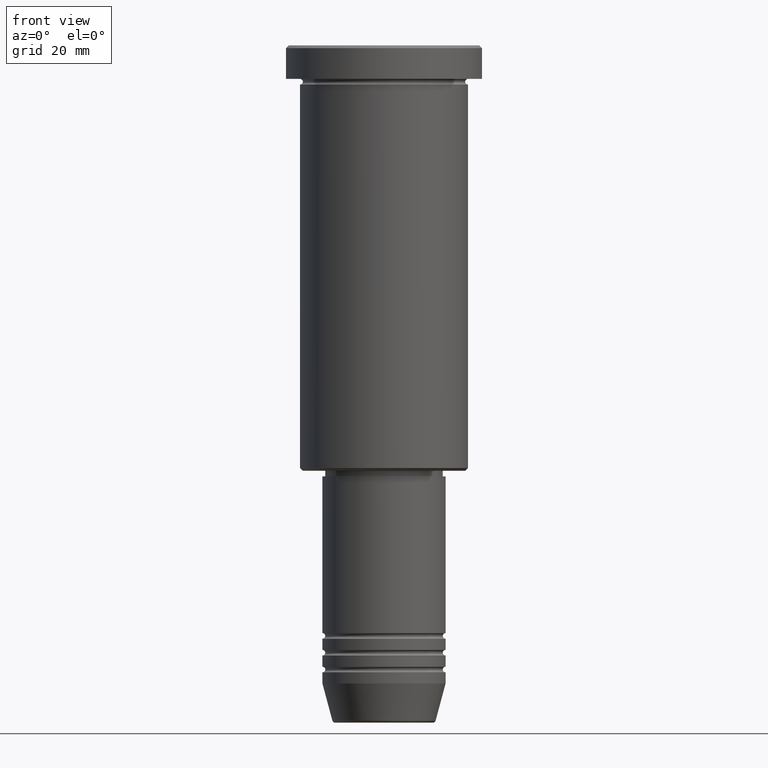
[diagram: clean part render]
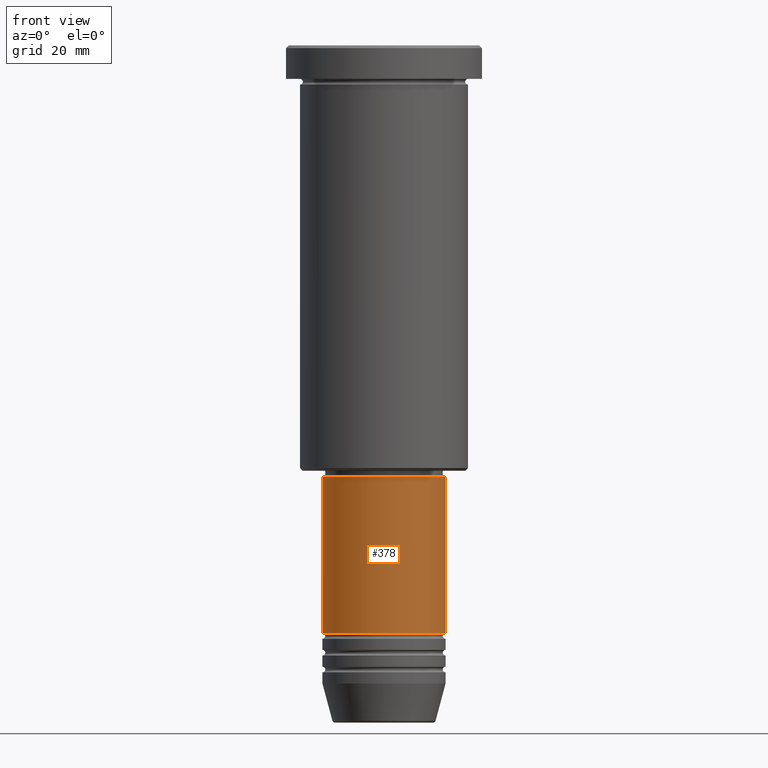
[diagram: same view with one face highlighted and labeled with its STEP entity id]
A machine part, front view. The second image highlights one B-rep face of the part: STEP entity #378.
In plain terms, the highlighted cylindrical surface (partial cylindrical patch) has radius 11 mm, axis along (-0, -0, 1).
Its self-contained STEP definition (entity closure, byte-faithful):
#3 = VECTOR ( 'NONE', #574, 1000.000000000000000 ) ;
#65 = CARTESIAN_POINT ( 'NONE',  ( 11.00000000000000000, 0.000000000000000000, -104.9999999999999574 ) ) ;
#67 = LINE ( 'NONE', #1011, #615 ) ;
#141 = EDGE_CURVE ( 'NONE', #990, #697, #529, .T. ) ;
#191 = LINE ( 'NONE', #217, #3 ) ;
#196 = CYLINDRICAL_SURFACE ( 'NONE', #387, 11.00000000000000000 ) ;
#217 = CARTESIAN_POINT ( 'NONE',  ( 11.00000000000000000, 0.000000000000000000, 0.000000000000000000 ) ) ;
#252 = EDGE_CURVE ( 'NONE', #364, #990, #67, .T. ) ;
#322 = AXIS2_PLACEMENT_3D ( 'NONE', #474, #757, #593 ) ;
#348 = CARTESIAN_POINT ( 'NONE',  ( -11.00000000000000000, 1.347111479062088405E-15, -104.9999999999999574 ) ) ;
#364 = VERTEX_POINT ( 'NONE', #348 ) ;
#378 = ADVANCED_FACE ( 'NONE', ( #530 ), #196, .T. ) ;
#387 = AXIS2_PLACEMENT_3D ( 'NONE', #897, #812, #1174 ) ;
#474 = CARTESIAN_POINT ( 'NONE',  ( 0.000000000000000000, 0.000000000000000000, -104.9999999999999574 ) ) ;
#529 = CIRCLE ( 'NONE', #849, 11.00000000000000000 ) ;
#530 = FACE_OUTER_BOUND ( 'NONE', #1018, .T. ) ;
#562 = ORIENTED_EDGE ( 'NONE', *, *, #753, .T. ) ;
#574 = DIRECTION ( 'NONE',  ( -0.000000000000000000, -0.000000000000000000, 1.000000000000000000 ) ) ;
#581 = CARTESIAN_POINT ( 'NONE',  ( 0.000000000000000000, 0.000000000000000000, -76.99999999999998579 ) ) ;
#593 = DIRECTION ( 'NONE',  ( 1.000000000000000000, 0.000000000000000000, 0.000000000000000000 ) ) ;
#615 = VECTOR ( 'NONE', #1183, 1000.000000000000000 ) ;
#638 = EDGE_CURVE ( 'NONE', #364, #1052, #742, .T. ) ;
#659 = ORIENTED_EDGE ( 'NONE', *, *, #638, .T. ) ;
#675 = DIRECTION ( 'NONE',  ( 1.000000000000000000, 0.000000000000000000, 0.000000000000000000 ) ) ;
#697 = VERTEX_POINT ( 'NONE', #1162 ) ;
#716 = ORIENTED_EDGE ( 'NONE', *, *, #252, .F. ) ;
#742 = CIRCLE ( 'NONE', #322, 11.00000000000000000 ) ;
#753 = EDGE_CURVE ( 'NONE', #1052, #697, #191, .T. ) ;
#757 = DIRECTION ( 'NONE',  ( -0.000000000000000000, -0.000000000000000000, 1.000000000000000000 ) ) ;
#812 = DIRECTION ( 'NONE',  ( -0.000000000000000000, -0.000000000000000000, 1.000000000000000000 ) ) ;
#849 = AXIS2_PLACEMENT_3D ( 'NONE', #581, #1121, #675 ) ;
#897 = CARTESIAN_POINT ( 'NONE',  ( 0.000000000000000000, 0.000000000000000000, 0.000000000000000000 ) ) ;
#990 = VERTEX_POINT ( 'NONE', #1040 ) ;
#1011 = CARTESIAN_POINT ( 'NONE',  ( -11.00000000000000000, 1.347111479062088405E-15, 0.000000000000000000 ) ) ;
#1018 = EDGE_LOOP ( 'NONE', ( #716, #659, #562, #1149 ) ) ;
#1040 = CARTESIAN_POINT ( 'NONE',  ( -11.00000000000000000, 1.347111479062088405E-15, -76.99999999999998579 ) ) ;
#1052 = VERTEX_POINT ( 'NONE', #65 ) ;
#1121 = DIRECTION ( 'NONE',  ( -0.000000000000000000, -0.000000000000000000, 1.000000000000000000 ) ) ;
#1149 = ORIENTED_EDGE ( 'NONE', *, *, #141, .F. ) ;
#1162 = CARTESIAN_POINT ( 'NONE',  ( 11.00000000000000000, 0.000000000000000000, -76.99999999999998579 ) ) ;
#1174 = DIRECTION ( 'NONE',  ( 1.000000000000000000, 0.000000000000000000, 0.000000000000000000 ) ) ;
#1183 = DIRECTION ( 'NONE',  ( -0.000000000000000000, -0.000000000000000000, 1.000000000000000000 ) ) ;